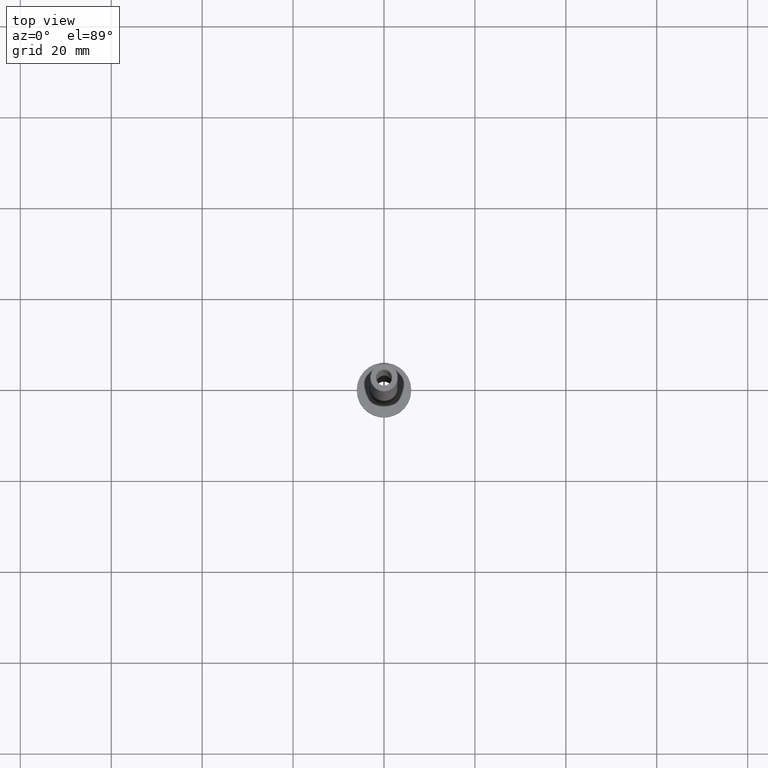
[diagram: clean part render]
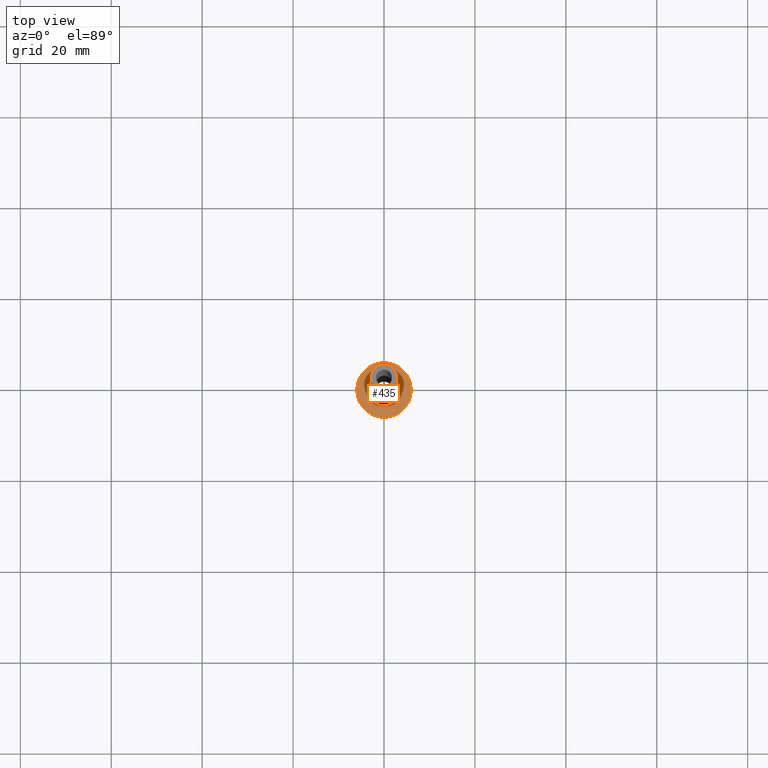
[diagram: same view with one face highlighted and labeled with its STEP entity id]
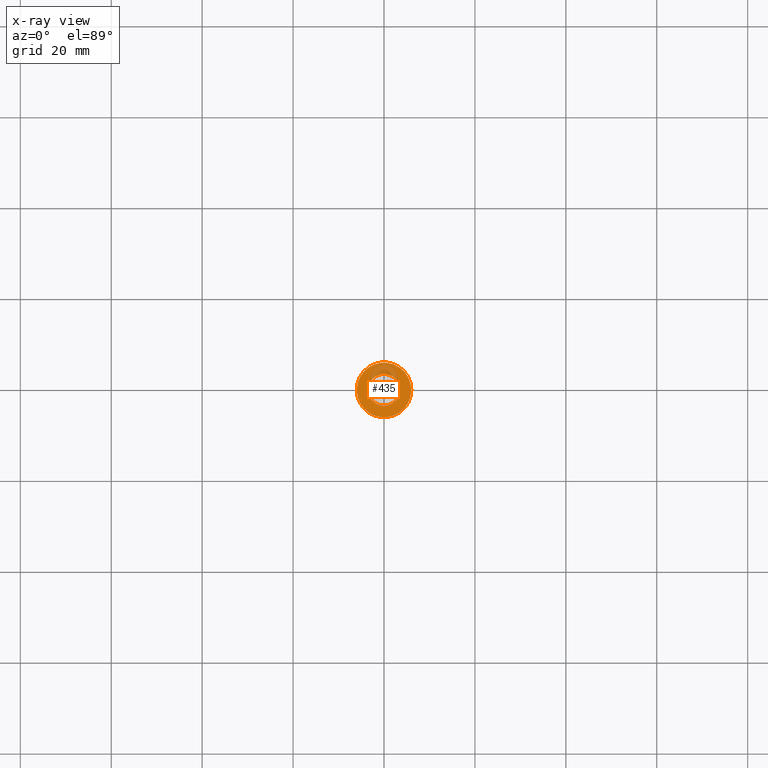
[diagram: x-ray of the same camera — body ghosted, the highlighted face saturated]
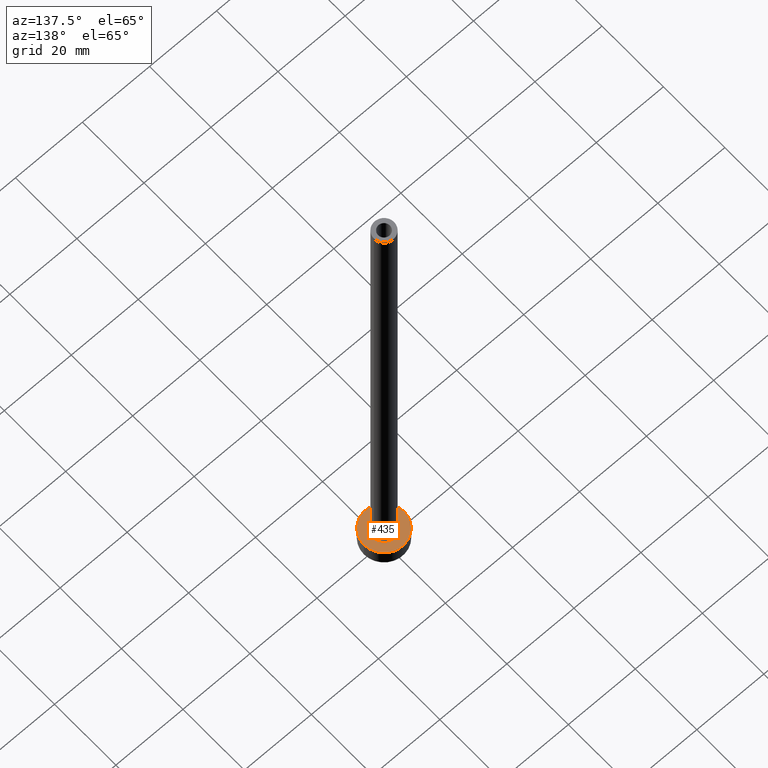
[diagram: same view with one face highlighted and labeled with its STEP entity id]
A machine part, top view. The second image highlights one B-rep face of the part: STEP entity #435.
The next image is the same camera in x-ray: the body ghosted, the highlighted face saturated — about 17% of this face is hidden behind the body in this view.
A second angle (auxiliary view) of the same face is appended — the face is thin or edge-on in the first view.
In plain terms, the highlighted planar face has unit normal (0, 0, 1).
Its self-contained STEP definition (entity closure, byte-faithful):
#9 = AXIS2_PLACEMENT_3D ( 'NONE', #444, #271, #241 ) ;
#10 = EDGE_CURVE ( 'NONE', #198, #45, #434, .T. ) ;
#13 = DIRECTION ( 'NONE',  ( -0.000000000000000000, -0.000000000000000000, -1.000000000000000000 ) ) ;
#31 = CARTESIAN_POINT ( 'NONE',  ( 0.000000000000000000, 0.000000000000000000, 5.000000000000000000 ) ) ;
#45 = VERTEX_POINT ( 'NONE', #402 ) ;
#52 = AXIS2_PLACEMENT_3D ( 'NONE', #31, #319, #171 ) ;
#91 = AXIS2_PLACEMENT_3D ( 'NONE', #161, #301, #411 ) ;
#99 = FACE_BOUND ( 'NONE', #446, .T. ) ;
#104 = FACE_OUTER_BOUND ( 'NONE', #305, .T. ) ;
#106 = CIRCLE ( 'NONE', #9, 6.000000000000000888 ) ;
#127 = AXIS2_PLACEMENT_3D ( 'NONE', #151, #13, #192 ) ;
#136 = CARTESIAN_POINT ( 'NONE',  ( -6.000000000000000888, 0.000000000000000000, 5.000000000000000000 ) ) ;
#144 = EDGE_CURVE ( 'NONE', #45, #198, #331, .T. ) ;
#151 = CARTESIAN_POINT ( 'NONE',  ( 0.000000000000000000, 0.000000000000000000, 5.000000000000000000 ) ) ;
#161 = CARTESIAN_POINT ( 'NONE',  ( 0.000000000000000000, 0.000000000000000000, 5.000000000000000000 ) ) ;
#165 = CARTESIAN_POINT ( 'NONE',  ( 6.000000000000000888, 7.347880794884120722E-16, 5.000000000000000000 ) ) ;
#171 = DIRECTION ( 'NONE',  ( 1.000000000000000000, 0.000000000000000000, -0.000000000000000000 ) ) ;
#192 = DIRECTION ( 'NONE',  ( 1.000000000000000000, 0.000000000000000000, 0.000000000000000000 ) ) ;
#196 = ORIENTED_EDGE ( 'NONE', *, *, #10, .T. ) ;
#198 = VERTEX_POINT ( 'NONE', #306 ) ;
#205 = EDGE_CURVE ( 'NONE', #213, #356, #106, .T. ) ;
#213 = VERTEX_POINT ( 'NONE', #165 ) ;
#241 = DIRECTION ( 'NONE',  ( 1.000000000000000000, 0.000000000000000000, 0.000000000000000000 ) ) ;
#271 = DIRECTION ( 'NONE',  ( 0.000000000000000000, 0.000000000000000000, 1.000000000000000000 ) ) ;
#273 = DIRECTION ( 'NONE',  ( -0.000000000000000000, -0.000000000000000000, -1.000000000000000000 ) ) ;
#277 = EDGE_CURVE ( 'NONE', #356, #213, #290, .T. ) ;
#290 = CIRCLE ( 'NONE', #91, 6.000000000000000888 ) ;
#301 = DIRECTION ( 'NONE',  ( 0.000000000000000000, 0.000000000000000000, 1.000000000000000000 ) ) ;
#305 = EDGE_LOOP ( 'NONE', ( #308, #458 ) ) ;
#306 = CARTESIAN_POINT ( 'NONE',  ( -3.500000000000000444, 4.286263797015737088E-16, 5.000000000000002665 ) ) ;
#308 = ORIENTED_EDGE ( 'NONE', *, *, #277, .T. ) ;
#319 = DIRECTION ( 'NONE',  ( 0.000000000000000000, 0.000000000000000000, 1.000000000000000000 ) ) ;
#331 = CIRCLE ( 'NONE', #382, 3.500000000000000444 ) ;
#342 = CARTESIAN_POINT ( 'NONE',  ( 0.000000000000000000, 0.000000000000000000, 5.000000000000000000 ) ) ;
#356 = VERTEX_POINT ( 'NONE', #136 ) ;
#381 = DIRECTION ( 'NONE',  ( 1.000000000000000000, 0.000000000000000000, 0.000000000000000000 ) ) ;
#382 = AXIS2_PLACEMENT_3D ( 'NONE', #342, #273, #381 ) ;
#393 = PLANE ( 'NONE',  #52 ) ;
#402 = CARTESIAN_POINT ( 'NONE',  ( 3.500000000000000444, 0.000000000000000000, 5.000000000000002665 ) ) ;
#411 = DIRECTION ( 'NONE',  ( 1.000000000000000000, 0.000000000000000000, 0.000000000000000000 ) ) ;
#434 = CIRCLE ( 'NONE', #127, 3.500000000000000444 ) ;
#435 = ADVANCED_FACE ( 'NONE', ( #99, #104 ), #393, .T. ) ;
#444 = CARTESIAN_POINT ( 'NONE',  ( 0.000000000000000000, 0.000000000000000000, 5.000000000000000000 ) ) ;
#446 = EDGE_LOOP ( 'NONE', ( #450, #196 ) ) ;
#450 = ORIENTED_EDGE ( 'NONE', *, *, #144, .T. ) ;
#458 = ORIENTED_EDGE ( 'NONE', *, *, #205, .T. ) ;